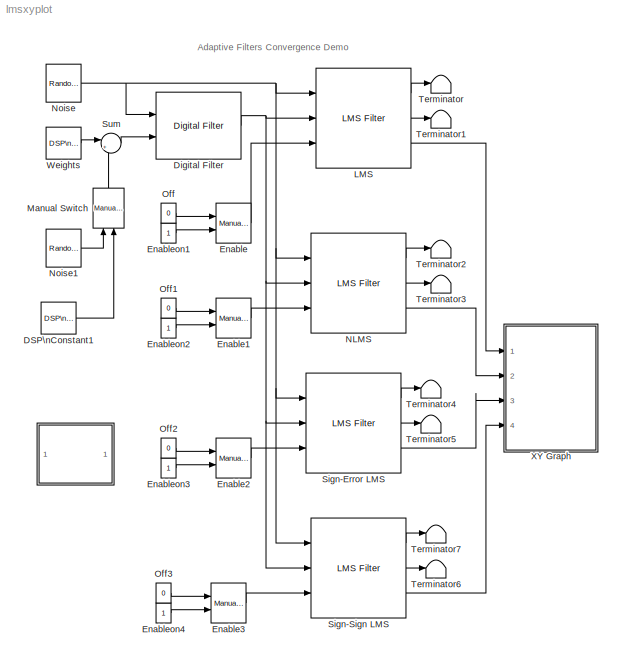
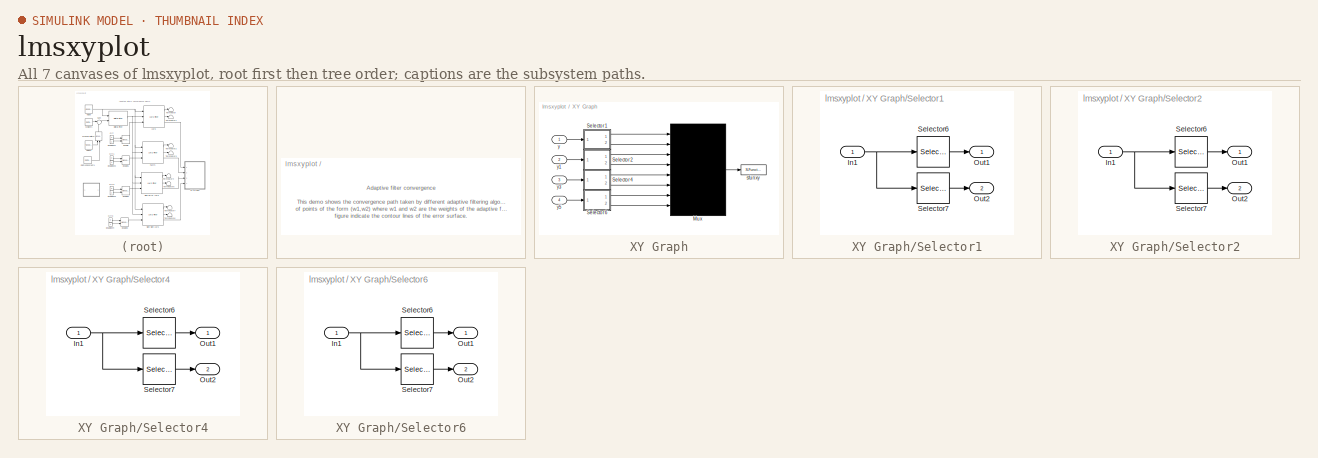
[diagram: thumbnail index - all 7 canvases of the model, root first then tree order]
MODEL lmsxyplot
KIND model
CONFIG InitFcn = w=[0.5 0.5 ones(1,18)];\nz=zeros(1,18);
BLOCK [SubSystem]  
  EnableExecutionContextPropagation = on
  MaskDisplay = disp('Info')
  MaskIconFrame = on
  MaskIconOpaque = on
  MaskIconRotate = none
  MaskIconUnits = autoscale
  MaskType = Frame-Based Simulation Info
  MinAlgLoopOccurrences = off
  Ports = []
  TreatAsAtomicUnit = off
BLOCK [Reference] DSP\nConstant1  REF=dspsrcs4/DSP\nConstant
  FramebasedOutput = -inf
  InterpretAs1D = -inf
  Ports = [0, 1]
  SampleMode = Discrete
  ShowPortLabels = on
  SourceBlock = dspsrcs4/DSP\nConstant
  SourceType = DSP Constant
  Ts = -inf
  Value = 0
  additionalParams = off
  allowOverrides = on
  continuousOutput = Sample-based
  dataType = Inherit from 'Constant value'
  discreteOutput = Sample-based
  fracBitsMode = Best precision
  framePeriod = 2
  isSigned = on
  numFracBits = 15
  sampTime = 1
  udDataType = sfix(16)
  wordLen = 16
BLOCK [Reference] Digital Filter  REF=dsparch4/Digital Filter
  AllPoleFiltStruct = Direct form
  BiQuadCoeffs = [1 0.3 0.4 1 0.1 0.2]
  CoeffSource = Input port(s)
  DenCoeffs = [1 0.1]
  DialogController = dspDDGCreate
  DialogControllerArgs = DataTag0
  FIRFiltStruct = Direct form
  FiltPerSampPopup = One filter per frame
  IC = 0
  ICden = 0
  ICnum = 0
  IIRFiltStruct = Direct form II transposed
  LatticeCoeffs = [0.2 0.4]
  NumCoeffs = [1 2]
  Ports = [2, 1]
  ScaleValues = 0
  SourceBlock = dsparch4/Digital Filter
  SourceType = Digital Filter
  TypePopup = FIR (all zeros)
  accumFracLength = 30
  accumMode = Same as product output
  accumWordLength = 32
  additionalParams = off
  allowOverrides = on
  denIgnore = on
  firstCoeffFracLength = 15
  firstCoeffMode = Same as input
  firstCoeffWordLength = 16
  memoryFracLength = 15
  memoryMode = Same as input
  memoryWordLength = 16
  outputFracLength = 15
  outputMode = Same as input
  outputWordLength = 16
  overflowMode = off
  prodOutputFracLength = 30
  prodOutputMode = Same as input
  prodOutputWordLength = 32
  roundingMode = Floor
  scaleValueFracLength = 14
  secondCoeffFracLength = 15
  secondCoeffMode = Same as numerator
  secondCoeffWordLength = 16
  showAcc = off
  showCoeff = off
  showMem = off
  showMpy = off
  showOut = off
  stageIOMode = Same as input
  stageIOWordLength = 16
  stageInFracLength = 15
  stageOutFracLength = 15
  tapSumFracLength = 30
  thirdCoeffFracLength = 15
  thirdCoeffMode = Same as input
  thirdCoeffWordLength = 16
BLOCK [Reference] Enable  REF=simulink/Signal\nRouting/Manual Switch
  Ports = [2, 1]
  ShowPortLabels = on
  SourceBlock = simulink/Signal\nRouting/Manual Switch
  SourceType = Manual Switch
  action = 0
  sw = 0
BLOCK [Reference] Enable1  REF=simulink/Signal\nRouting/Manual Switch
  Ports = [2, 1]
  ShowPortLabels = on
  SourceBlock = simulink/Signal\nRouting/Manual Switch
  SourceType = Manual Switch
  action = 0
  sw = 0
BLOCK [Reference] Enable2  REF=simulink/Signal\nRouting/Manual Switch
  Ports = [2, 1]
  ShowPortLabels = on
  SourceBlock = simulink/Signal\nRouting/Manual Switch
  SourceType = Manual Switch
  action = 0
  sw = 0
BLOCK [Reference] Enable3  REF=simulink/Signal\nRouting/Manual Switch
  Ports = [2, 1]
  ShowPortLabels = on
  SourceBlock = simulink/Signal\nRouting/Manual Switch
  SourceType = Manual Switch
  action = 0
  sw = 0
BLOCK [Constant] Enableon1
  OutDataTypeMode = boolean
BLOCK [Constant] Enableon2
  OutDataTypeMode = boolean
BLOCK [Constant] Enableon3
  OutDataTypeMode = boolean
BLOCK [Constant] Enableon4
  OutDataTypeMode = boolean
BLOCK [Reference] LMS  REF=dspadpt3/LMS Filter
  Adapt = on
  Algo = LMS
  DialogController = dspDDGCreate
  DialogControllerArgs = DataTag1
  L = 20
  Ports = [3, 3]
  ShowPortLabels = off
  SourceBlock = dspadpt3/LMS Filter
  SourceType = LMS Filter
  accum2FracLength = 20
  accum2Mode = User-defined
  accumFracLength = 20
  accumMode = User-defined
  accumWordLength = 32
  firstCoeffFracLength = 15
  firstCoeffMode = User-defined
  firstCoeffWordLength = 16
  ic = [0 0 z]
  leakage = 1.0
  memoryFracLength = 15
  memoryMode = User-defined
  memoryWordLength = 16
  mu = 0.005
  overflowMode = on
  prodOutput2FracLength = 20
  prodOutput2Mode = User-defined
  prodOutput3FracLength = 20
  prodOutput3Mode = User-defined
  prodOutput4FracLength = 20
  prodOutput4Mode = User-defined
  prodOutputFracLength = 20
  prodOutputMode = User-defined
  prodOutputWordLength = 32
  quotientFracLength = 20
  quotientMode = User-defined
  resetflag = None
  roundingMode = Nearest
  secondCoeffFracLength = 15
  secondCoeffMode = User-defined
  secondCoeffWordLength = 2
  stepflag = Dialog
  weights = on
BLOCK [Reference] Manual Switch  REF=simulink/Signal\nRouting/Manual Switch
  Ports = [2, 1]
  ShowPortLabels = on
  SourceBlock = simulink/Signal\nRouting/Manual Switch
  SourceType = Manual Switch
  action = 0
  sw = 0
BLOCK [Reference] NLMS  REF=dspadpt3/LMS Filter
  Adapt = on
  Algo = Normalized LMS
  DialogController = dspDDGCreate
  DialogControllerArgs = DataTag2
  L = 20
  Ports = [3, 3]
  ShowPortLabels = off
  SourceBlock = dspadpt3/LMS Filter
  SourceType = LMS Filter
  accum2FracLength = 20
  accum2Mode = User-defined
  accumFracLength = 20
  accumMode = User-defined
  accumWordLength = 32
  firstCoeffFracLength = 15
  firstCoeffMode = User-defined
  firstCoeffWordLength = 16
  ic = [1 0 z]
  leakage = 1.0
  memoryFracLength = 15
  memoryMode = User-defined
  memoryWordLength = 16
  mu = 0.05
  overflowMode = on
  prodOutput2FracLength = 20
  prodOutput2Mode = User-defined
  prodOutput3FracLength = 20
  prodOutput3Mode = User-defined
  prodOutput4FracLength = 20
  prodOutput4Mode = User-defined
  prodOutputFracLength = 20
  prodOutputMode = User-defined
  prodOutputWordLength = 32
  quotientFracLength = 20
  quotientMode = User-defined
  resetflag = None
  roundingMode = Nearest
  secondCoeffFracLength = 15
  secondCoeffMode = User-defined
  secondCoeffWordLength = 2
  stepflag = Dialog
  weights = on
BLOCK [Reference] Noise  REF=dspsrcs4/Random\nSource
  CltLength = 12
  DataType = Double
  Diagnostics = AllowInheritedTsInSrc
  Inherit = off
  Max = 1
  Mean = 0
  Min = 0
  NormMethod = Ziggurat
  OutComplex = Real
  Ports = [0, 1]
  RepMode = Specify seed
  SampFrame = 1
  SampMode = Discrete
  SampTime = 1
  Seed = [23341]
  SourceBlock = dspsrcs4/Random\nSource
  SourceType = Random Source
  SrcType = Gaussian
  Var = 1
BLOCK [Reference] Noise1  REF=dspsrcs4/Random\nSource
  CltLength = 12
  DataType = Double
  Diagnostics = AllowInheritedTsInSrc
  Inherit = off
  Max = 1
  Mean = 0
  Min = 0
  NormMethod = Ziggurat
  OutComplex = Real
  Ports = [0, 1]
  RepMode = Specify seed
  SampFrame = 20
  SampMode = Discrete
  SampTime = 1/20
  Seed = [23341]
  SourceBlock = dspsrcs4/Random\nSource
  SourceType = Random Source
  SrcType = Gaussian
  Var = 0.01
BLOCK [Constant] Off
  OutDataTypeMode = boolean
  Value = 0
BLOCK [Constant] Off1
  OutDataTypeMode = boolean
  Value = 0
BLOCK [Constant] Off2
  OutDataTypeMode = boolean
  Value = 0
BLOCK [Constant] Off3
  OutDataTypeMode = boolean
  Value = 0
BLOCK [Reference] Sign-Error LMS  REF=dspadpt3/LMS Filter
  Adapt = on
  Algo = Sign-Error LMS
  DialogController = dspDDGCreate
  DialogControllerArgs = DataTag3
  L = 20
  Ports = [3, 3]
  ShowPortLabels = off
  SourceBlock = dspadpt3/LMS Filter
  SourceType = LMS Filter
  accum2FracLength = 20
  accum2Mode = User-defined
  accumFracLength = 20
  accumMode = User-defined
  accumWordLength = 32
  firstCoeffFracLength = 15
  firstCoeffMode = User-defined
  firstCoeffWordLength = 16
  ic = [0 1 z]
  leakage = 1.0
  memoryFracLength = 15
  memoryMode = User-defined
  memoryWordLength = 16
  mu = 0.005
  overflowMode = on
  prodOutput2FracLength = 20
  prodOutput2Mode = User-defined
  prodOutput3FracLength = 20
  prodOutput3Mode = User-defined
  prodOutput4FracLength = 20
  prodOutput4Mode = User-defined
  prodOutputFracLength = 20
  prodOutputMode = User-defined
  prodOutputWordLength = 32
  quotientFracLength = 20
  quotientMode = User-defined
  resetflag = None
  roundingMode = Nearest
  secondCoeffFracLength = 15
  secondCoeffMode = User-defined
  secondCoeffWordLength = 2
  stepflag = Dialog
  weights = on
BLOCK [Reference] Sign-Sign LMS  REF=dspadpt3/LMS Filter
  Adapt = on
  Algo = Sign-Sign LMS
  DialogController = dspDDGCreate
  DialogControllerArgs = DataTag4
  L = 20
  Ports = [3, 3]
  ShowPortLabels = off
  SourceBlock = dspadpt3/LMS Filter
  SourceType = LMS Filter
  accum2FracLength = 20
  accum2Mode = User-defined
  accumFracLength = 20
  accumMode = User-defined
  accumWordLength = 32
  firstCoeffFracLength = 15
  firstCoeffMode = User-defined
  firstCoeffWordLength = 16
  ic = [1 1 z]
  leakage = 1.0
  memoryFracLength = 15
  memoryMode = User-defined
  memoryWordLength = 16
  mu = 0.005
  overflowMode = on
  prodOutput2FracLength = 20
  prodOutput2Mode = User-defined
  prodOutput3FracLength = 20
  prodOutput3Mode = User-defined
  prodOutput4FracLength = 20
  prodOutput4Mode = User-defined
  prodOutputFracLength = 20
  prodOutputMode = User-defined
  prodOutputWordLength = 32
  quotientFracLength = 20
  quotientMode = User-defined
  resetflag = None
  roundingMode = Nearest
  secondCoeffFracLength = 15
  secondCoeffMode = User-defined
  secondCoeffWordLength = 2
  stepflag = Dialog
  weights = on
BLOCK [Sum] Sum
  IconShape = round
  InputSameDT = off
  Inputs = |++
  OutDataTypeMode = Inherit via internal rule
  Ports = [2, 1]
BLOCK [Terminator] Terminator
BLOCK [Terminator] Terminator1
BLOCK [Terminator] Terminator2
BLOCK [Terminator] Terminator3
BLOCK [Terminator] Terminator4
BLOCK [Terminator] Terminator5
BLOCK [Terminator] Terminator6
BLOCK [Terminator] Terminator7
BLOCK [Reference] Weights  REF=dspsrcs4/DSP\nConstant
  FramebasedOutput = -inf
  InterpretAs1D = -inf
  Ports = [0, 1]
  SampleMode = Discrete
  ShowPortLabels = on
  SourceBlock = dspsrcs4/DSP\nConstant
  SourceType = DSP Constant
  Ts = -inf
  Value = w'
  additionalParams = off
  allowOverrides = on
  continuousOutput = Sample-based
  dataType = Inherit from 'Constant value'
  discreteOutput = Sample-based
  fracBitsMode = Best precision
  framePeriod = 2
  isSigned = on
  numFracBits = 15
  sampTime = 1
  udDataType = sfix(16)
  wordLen = 16
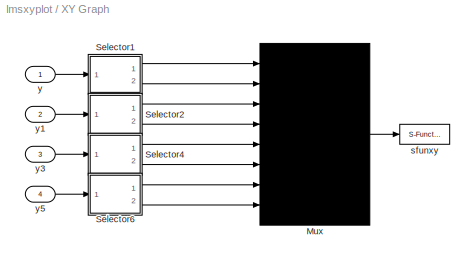
BLOCK [SubSystem] XY Graph
  CopyFcn = lmsxy([],[],[],'CopyBlock',[])
  DeleteFcn = lmsxy([],[],[],'DeleteBlock',[])
  EnableExecutionContextPropagation = on
  LoadFcn = lmsxy([],[],[],'LoadBlock',[])
  MaskCallbackString = ||||||
  MaskDescription = XY scope using MATLAB graph window.  First input is used as time base.  Enter plotting ranges.
  MaskDisplay = plot([.05 .95 .95 .05 .05],[.45 .45 .95 .95 .45], 0.5+cos(0:0.1:2*pi)*0.3,0.7+sin(0:0.1:2*pi)*0.2)
  MaskEnableString = on,on,on,on,on,on,on
  MaskHelp = This block can be used to explore limit cycles. Look at the m-file sfunxy.m to see how it works.
  MaskIconFrame = on
  MaskIconOpaque = on
  MaskIconRotate = none
  MaskIconUnits = normalized
  MaskInitialization = lmsxy([],[],[],'Start', [R W(1:2) xmin xmax ymin ymax])
  MaskPromptString = x-min:|x-max:|y-min:|y-max:|Sample time:|Input parameters [mean variance]|Weights
  MaskSelfModifiable = on
  MaskStyleString = edit,edit,edit,edit,edit,edit,edit
  MaskTabNameString = ,,,,,,
  MaskToolTipString = on,on,on,on,on,on,on
  MaskTunableValueString = on,on,on,on,off,off,off
  MaskType = XY scope.
  MaskValueString = 0|1|0|1|-1|[0 1]|w
  MaskVarAliasString = ,,,,,,
  MaskVariables = xmin=@1;xmax=@2;ymin=@3;ymax=@4;st=@5;R=@6;W=@7;
  MaskVisibilityString = on,on,on,on,on,on,on
  MinAlgLoopOccurrences = off
  NameChangeFcn = lmsxy([],[],[],'NameChange',[])
  Ports = [4]
  SimViewingDevice = on
  StopFcn = lmsxy([],[],[],'Stop',[])
  TreatAsAtomicUnit = on
BLOCK [Mux] XY Graph/Mux
  Inputs = 8
  Ports = [8, 1]
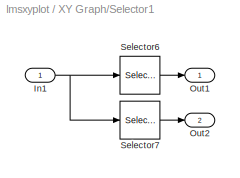
BLOCK [SubSystem] XY Graph/Selector1
  EnableExecutionContextPropagation = on
  MinAlgLoopOccurrences = off
  Ports = [1, 2]
  TreatAsAtomicUnit = off
BLOCK [Inport] XY Graph/Selector1/In1
  IconDisplay = Port number
  LatchInput = off
BLOCK [Outport] XY Graph/Selector1/Out1
  BusOutputAsStruct = off
  IconDisplay = Port number
BLOCK [Outport] XY Graph/Selector1/Out2
  BusOutputAsStruct = off
  IconDisplay = Port number
  Port = 2
BLOCK [Selector] XY Graph/Selector1/Selector6
  Elements = 2
  Ports = [1, 1]
BLOCK [Selector] XY Graph/Selector1/Selector7
  Ports = [1, 1]
BLOCK [SubSystem] XY Graph/Selector2
  EnableExecutionContextPropagation = on
  MinAlgLoopOccurrences = off
  Ports = [1, 2]
  TreatAsAtomicUnit = off
BLOCK [Inport] XY Graph/Selector2/In1
  IconDisplay = Port number
  LatchInput = off
BLOCK [Outport] XY Graph/Selector2/Out1
  BusOutputAsStruct = off
  IconDisplay = Port number
BLOCK [Outport] XY Graph/Selector2/Out2
  BusOutputAsStruct = off
  IconDisplay = Port number
  Port = 2
BLOCK [Selector] XY Graph/Selector2/Selector6
  Elements = 2
  Ports = [1, 1]
BLOCK [Selector] XY Graph/Selector2/Selector7
  Ports = [1, 1]
BLOCK [SubSystem] XY Graph/Selector4
  EnableExecutionContextPropagation = on
  MinAlgLoopOccurrences = off
  Ports = [1, 2]
  TreatAsAtomicUnit = off
BLOCK [Inport] XY Graph/Selector4/In1
  IconDisplay = Port number
  LatchInput = off
BLOCK [Outport] XY Graph/Selector4/Out1
  BusOutputAsStruct = off
  IconDisplay = Port number
BLOCK [Outport] XY Graph/Selector4/Out2
  BusOutputAsStruct = off
  IconDisplay = Port number
  Port = 2
BLOCK [Selector] XY Graph/Selector4/Selector6
  Elements = 2
  Ports = [1, 1]
BLOCK [Selector] XY Graph/Selector4/Selector7
  Ports = [1, 1]
BLOCK [SubSystem] XY Graph/Selector6
  EnableExecutionContextPropagation = on
  MinAlgLoopOccurrences = off
  Ports = [1, 2]
  TreatAsAtomicUnit = off
BLOCK [Inport] XY Graph/Selector6/In1
  IconDisplay = Port number
  LatchInput = off
BLOCK [Outport] XY Graph/Selector6/Out1
  BusOutputAsStruct = off
  IconDisplay = Port number
BLOCK [Outport] XY Graph/Selector6/Out2
  BusOutputAsStruct = off
  IconDisplay = Port number
  Port = 2
BLOCK [Selector] XY Graph/Selector6/Selector6
  Elements = 2
  Ports = [1, 1]
BLOCK [Selector] XY Graph/Selector6/Selector7
  Ports = [1, 1]
BLOCK [S-Function] XY Graph/sfunxy
  FunctionName = lmsxy
  Parameters = [xmin xmax ymin ymax 1:6], st
  Ports = [1]
BLOCK [Inport] XY Graph/y
  IconDisplay = Port number
  LatchInput = off
BLOCK [Inport] XY Graph/y1
  IconDisplay = Port number
  LatchInput = off
  Port = 2
BLOCK [Inport] XY Graph/y3
  IconDisplay = Port number
  LatchInput = off
  Port = 3
BLOCK [Inport] XY Graph/y5
  IconDisplay = Port number
  LatchInput = off
  Port = 4
ANNOTATION (root): Adaptive Filters Convergence Demo
ANNOTATION  : Adaptive filter convergence\n\nThis demo shows the convergence path taken by different adaptive filtering algorithms. The plot is a sequence\nof points of the form (w1,w2) where w1 and w2 are the weights of the adaptive filter. The blue dots in the\nfigure indicate the contour lines of the error surface.\n\nZoom(Tools->Zoom In) into the graph to see properties of convergence path.\n\nThis demo doe...<+346ch>
LINE DSP\nConstant1:1 -> Manual Switch:2
NET Digital Filter:1 -> LMS:2, NLMS:2, Sign-Error LMS:2, Sign-Sign LMS:2
LINE Enable1:1 -> NLMS:3
LINE Enable2:1 -> Sign-Error LMS:3
LINE Enable3:1 -> Sign-Sign LMS:3
LINE Enable:1 -> LMS:3
LINE Enableon1:1 -> Enable:2
LINE Enableon2:1 -> Enable1:2
LINE Enableon3:1 -> Enable2:2
LINE Enableon4:1 -> Enable3:2
LINE LMS:1 -> Terminator:1
LINE LMS:2 -> Terminator1:1
LINE LMS:3 -> XY Graph:1
LINE Manual Switch:1 -> Sum:2
LINE NLMS:1 -> Terminator2:1
LINE NLMS:2 -> Terminator3:1
LINE NLMS:3 -> XY Graph:2
LINE Noise1:1 -> Manual Switch:1
NET Noise:1 -> Digital Filter:1, LMS:1, NLMS:1, Sign-Error LMS:1, Sign-Sign LMS:1
LINE Off1:1 -> Enable1:1
LINE Off2:1 -> Enable2:1
LINE Off3:1 -> Enable3:1
LINE Off:1 -> Enable:1
LINE Sign-Error LMS:1 -> Terminator4:1
LINE Sign-Error LMS:2 -> Terminator5:1
LINE Sign-Error LMS:3 -> XY Graph:3
LINE Sign-Sign LMS:1 -> Terminator7:1
LINE Sign-Sign LMS:2 -> Terminator6:1
LINE Sign-Sign LMS:3 -> XY Graph:4
LINE Sum:1 -> Digital Filter:2
LINE Weights:1 -> Sum:1
LINE XY Graph/Mux:1 -> XY Graph/sfunxy:1
NET XY Graph/Selector1/In1:1 -> XY Graph/Selector1/Selector6:1, XY Graph/Selector1/Selector7:1
LINE XY Graph/Selector1/Selector6:1 -> XY Graph/Selector1/Out1:1
LINE XY Graph/Selector1/Selector7:1 -> XY Graph/Selector1/Out2:1
LINE XY Graph/Selector1:1 -> XY Graph/Mux:1
LINE XY Graph/Selector1:2 -> XY Graph/Mux:2
NET XY Graph/Selector2/In1:1 -> XY Graph/Selector2/Selector6:1, XY Graph/Selector2/Selector7:1
LINE XY Graph/Selector2/Selector6:1 -> XY Graph/Selector2/Out1:1
LINE XY Graph/Selector2/Selector7:1 -> XY Graph/Selector2/Out2:1
LINE XY Graph/Selector2:1 -> XY Graph/Mux:3
LINE XY Graph/Selector2:2 -> XY Graph/Mux:4
NET XY Graph/Selector4/In1:1 -> XY Graph/Selector4/Selector6:1, XY Graph/Selector4/Selector7:1
LINE XY Graph/Selector4/Selector6:1 -> XY Graph/Selector4/Out1:1
LINE XY Graph/Selector4/Selector7:1 -> XY Graph/Selector4/Out2:1
LINE XY Graph/Selector4:1 -> XY Graph/Mux:5
LINE XY Graph/Selector4:2 -> XY Graph/Mux:6
NET XY Graph/Selector6/In1:1 -> XY Graph/Selector6/Selector6:1, XY Graph/Selector6/Selector7:1
LINE XY Graph/Selector6/Selector6:1 -> XY Graph/Selector6/Out1:1
LINE XY Graph/Selector6/Selector7:1 -> XY Graph/Selector6/Out2:1
LINE XY Graph/Selector6:1 -> XY Graph/Mux:7
LINE XY Graph/Selector6:2 -> XY Graph/Mux:8
LINE XY Graph/y1:1 -> XY Graph/Selector2:1
LINE XY Graph/y3:1 -> XY Graph/Selector4:1
LINE XY Graph/y5:1 -> XY Graph/Selector6:1
LINE XY Graph/y:1 -> XY Graph/Selector1:1
note: NET lines group one-source signal fan-out (src -> all destinations, sorted); 1:1 wires keep LINE
